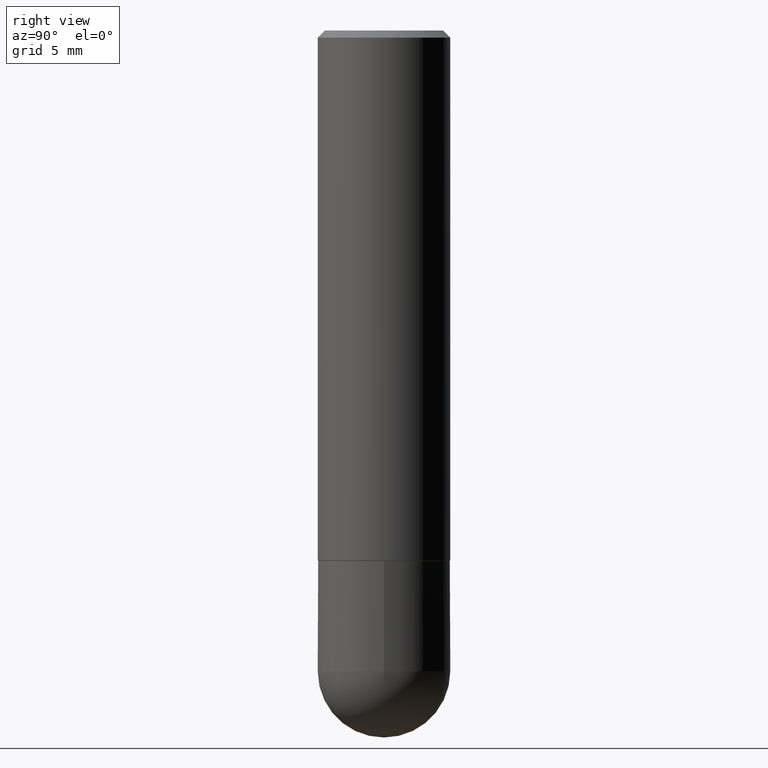
[diagram: clean part render]
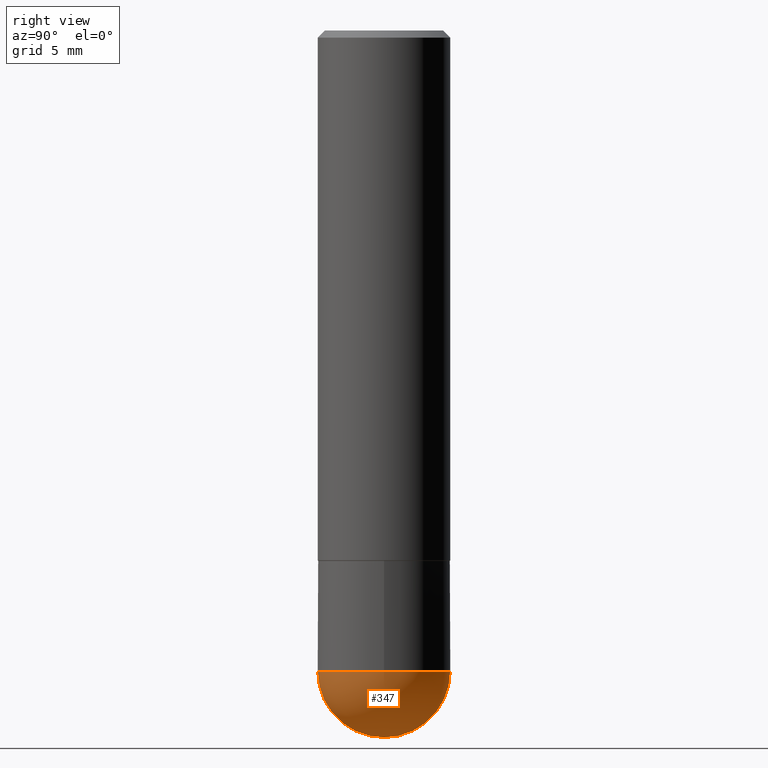
[diagram: same view with one face highlighted and labeled with its STEP entity id]
A machine part, right view. The second image highlights one B-rep face of the part: STEP entity #347.
In plain terms, the highlighted spherical surface has radius 4.7625 mm.
Its self-contained STEP definition (entity closure, byte-faithful):
#45 = EDGE_LOOP ( 'NONE', ( #260, #106, #320, #393 ) ) ;
#56 = AXIS2_PLACEMENT_3D ( 'NONE', #186, #355, #188 ) ;
#62 = SPHERICAL_SURFACE ( 'NONE', #335, 0.1875000000000002776 ) ;
#66 = CIRCLE ( 'NONE', #229, 0.1875000000000002776 ) ;
#81 = CARTESIAN_POINT ( 'NONE',  ( 0.1874999999999999722, -7.092071469525134744E-15, -1.812499999999999778 ) ) ;
#84 = CARTESIAN_POINT ( 'NONE',  ( 4.432412211210560082E-29, -6.328309926653201295E-15, -1.812499999999999778 ) ) ;
#92 = VERTEX_POINT ( 'NONE', #81 ) ;
#105 = CARTESIAN_POINT ( 'NONE',  ( -1.332267629550146039E-15, -0.1875000000000066613, -1.812499999999999334 ) ) ;
#106 = ORIENTED_EDGE ( 'NONE', *, *, #362, .T. ) ;
#107 = CARTESIAN_POINT ( 'NONE',  ( 4.432412211210560082E-29, -6.328309926653201295E-15, -1.812499999999999778 ) ) ;
#111 = VERTEX_POINT ( 'NONE', #105 ) ;
#126 = CIRCLE ( 'NONE', #56, 0.1875000000000002776 ) ;
#134 = VERTEX_POINT ( 'NONE', #397 ) ;
#148 = EDGE_CURVE ( 'NONE', #92, #389, #392, .T. ) ;
#163 = CARTESIAN_POINT ( 'NONE',  ( 1.309305502066218396E-15, 0.1874999999999935607, -1.812500000000000444 ) ) ;
#170 = DIRECTION ( 'NONE',  ( 1.000000000000000000, -6.982962677686263555E-15, 0.000000000000000000 ) ) ;
#180 = CARTESIAN_POINT ( 'NONE',  ( 4.101292433296673835E-29, -6.802492294793250802E-15, -1.812499999999999778 ) ) ;
#186 = CARTESIAN_POINT ( 'NONE',  ( 4.101292433296673835E-29, -6.802492294793250802E-15, -1.812499999999999778 ) ) ;
#187 = EDGE_CURVE ( 'NONE', #111, #92, #386, .T. ) ;
#188 = DIRECTION ( 'NONE',  ( -7.105427357601001070E-15, -1.000000000000000000, 0.000000000000000000 ) ) ;
#209 = DIRECTION ( 'NONE',  ( 1.000000000000000000, -6.982962677686265922E-15, 4.883557194083112340E-29 ) ) ;
#216 = DIRECTION ( 'NONE',  ( 6.982962677686266711E-15, 1.000000000000000000, 0.000000000000000000 ) ) ;
#222 = DIRECTION ( 'NONE',  ( -2.445468806185136597E-29, 3.491481338843145583E-15, 1.000000000000000000 ) ) ;
#229 = AXIS2_PLACEMENT_3D ( 'NONE', #237, #209, #216 ) ;
#237 = CARTESIAN_POINT ( 'NONE',  ( 4.101292433296673835E-29, -6.802492294793250802E-15, -1.812499999999999778 ) ) ;
#247 = DIRECTION ( 'NONE',  ( 6.982962677686266711E-15, 1.000000000000000000, -2.913971193241876428E-15 ) ) ;
#260 = ORIENTED_EDGE ( 'NONE', *, *, #312, .F. ) ;
#269 = FACE_OUTER_BOUND ( 'NONE', #45, .T. ) ;
#286 = AXIS2_PLACEMENT_3D ( 'NONE', #107, #367, #170 ) ;
#312 = EDGE_CURVE ( 'NONE', #134, #111, #126, .T. ) ;
#320 = ORIENTED_EDGE ( 'NONE', *, *, #148, .F. ) ;
#322 = DIRECTION ( 'NONE',  ( -1.000000000000000000, 6.982962677686266711E-15, -4.883557194083112340E-29 ) ) ;
#324 = AXIS2_PLACEMENT_3D ( 'NONE', #84, #222, #396 ) ;
#335 = AXIS2_PLACEMENT_3D ( 'NONE', #180, #322, #247 ) ;
#347 = ADVANCED_FACE ( 'NONE', ( #269 ), #62, .T. ) ;
#355 = DIRECTION ( 'NONE',  ( -1.000000000000000000, 7.105427357601001070E-15, -4.926315508542082329E-29 ) ) ;
#362 = EDGE_CURVE ( 'NONE', #134, #389, #66, .T. ) ;
#367 = DIRECTION ( 'NONE',  ( -2.445468806185136597E-29, 3.491481338843145583E-15, 1.000000000000000000 ) ) ;
#386 = CIRCLE ( 'NONE', #286, 0.1874999999999999722 ) ;
#389 = VERTEX_POINT ( 'NONE', #163 ) ;
#392 = CIRCLE ( 'NONE', #324, 0.1874999999999999722 ) ;
#393 = ORIENTED_EDGE ( 'NONE', *, *, #187, .F. ) ;
#396 = DIRECTION ( 'NONE',  ( 1.000000000000000000, -6.982962677686263555E-15, 0.000000000000000000 ) ) ;
#397 = CARTESIAN_POINT ( 'NONE',  ( 4.567835018417444905E-29, -7.445663982084336619E-15, -2.000000000000000444 ) ) ;